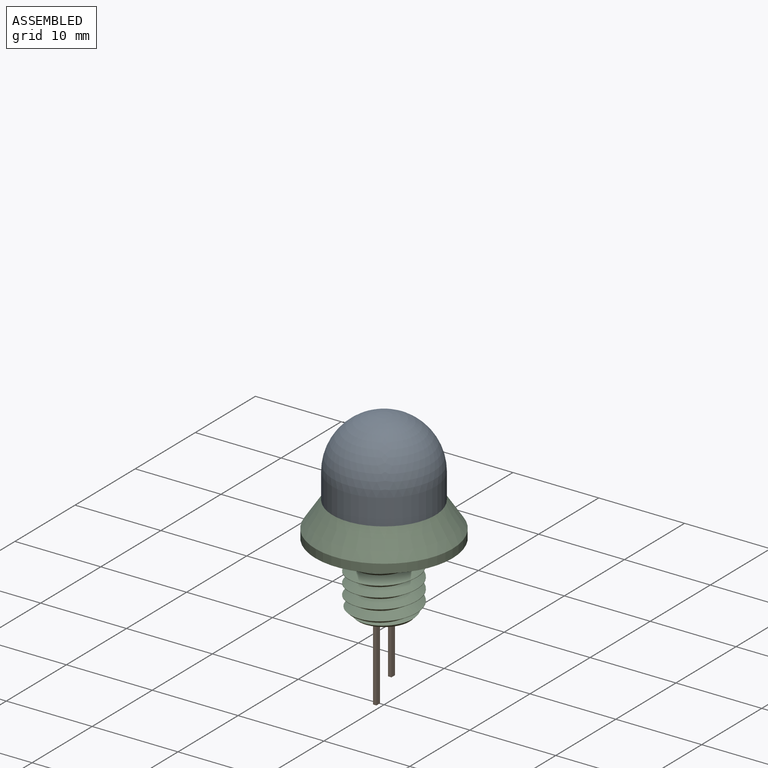
[diagram: assembled view]
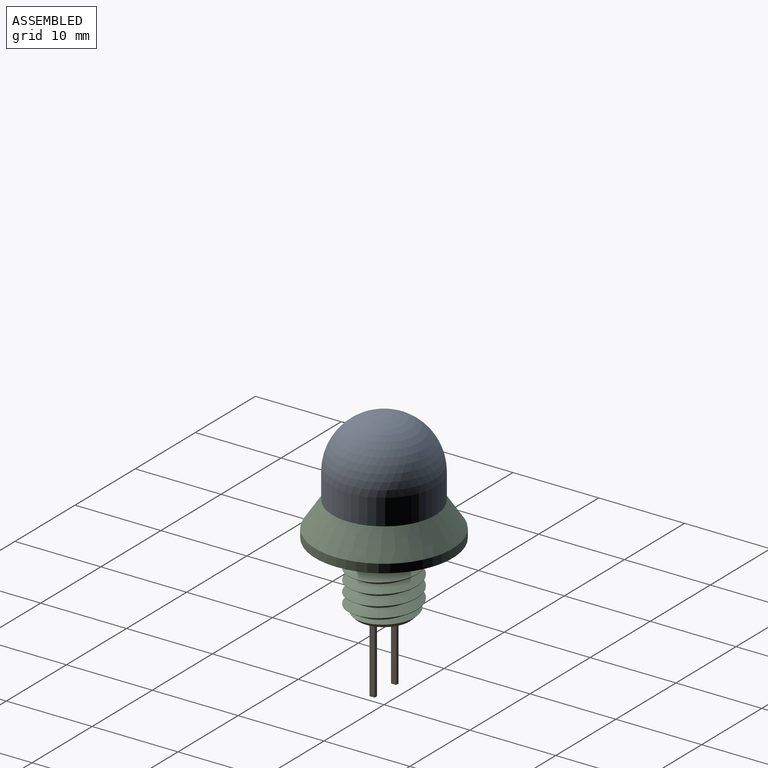
[diagram: assembled view, second angle]
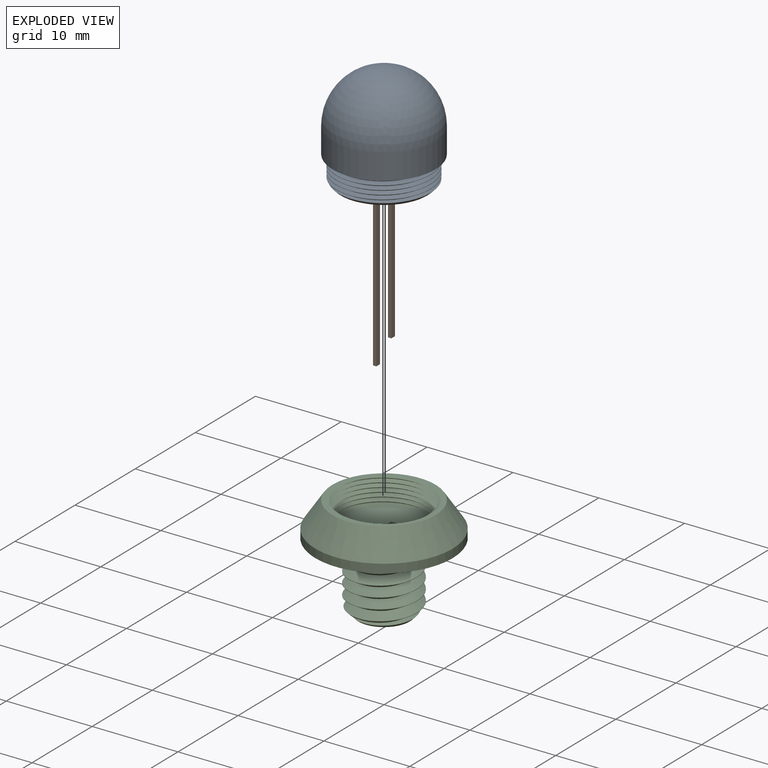
[diagram: exploded view]
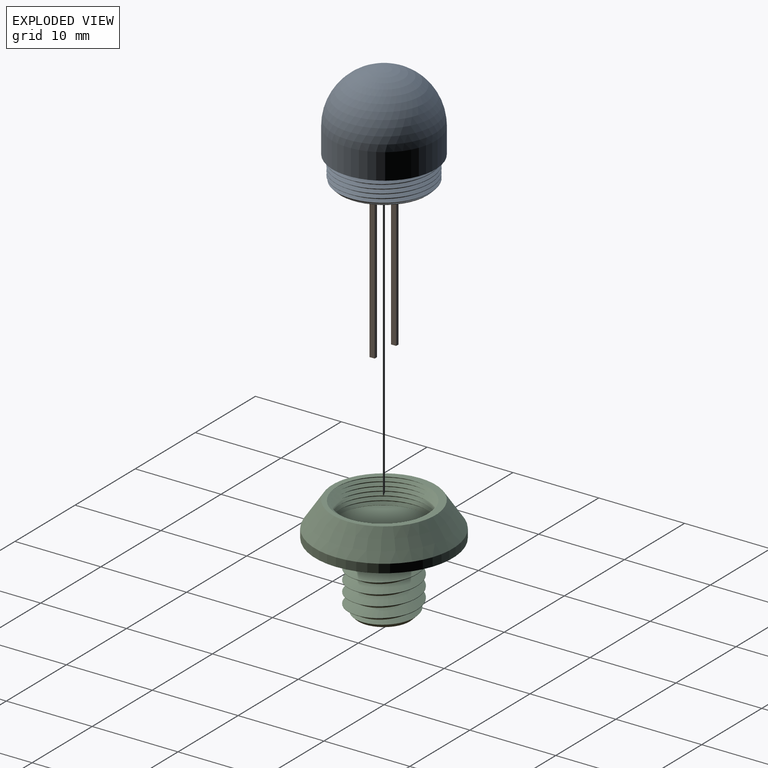
[diagram: exploded view, second angle]
ASSEMBLY  parts=3 mates=2
PART A: 14 faces, bbox 12.3x13x12.5 mm
  f0: cylinder r=5.5mm len=11mm, axis (0,0,1), area 8.1mm2, adj f7,f8,f9,f11
  f1: plane 10.1x10.1mm, normal (0,0,-1), area 51.8mm2, adj f2,f7
  f2: cylinder r=3mm len=6mm, axis (0,0,1), area 20.7mm2, adj f1,f3
  f3: plane 6x6mm, normal (0,0,-1), area 7mm2, adj f2,f4
  f4: cylinder r=2.6mm len=5.2mm, axis (0,0,1), area 14.7mm2, adj f3,f5
  f5: plane 9x9mm, normal (0,0,1), area 42.4mm2, adj f4,f6
  f6: cylinder r=4.5mm len=9mm, axis (0,0,1), area 113.1mm2, adj f5,f10
  f7: cone r=5.5mm half-angle=45deg, axis (0,0,1), area 12.7mm2, adj f0,f1,f8,f9
  f8: bspline ~12.7x11mm, area 82.3mm2, adj f0,f7,f9,f11
  f9: bspline ~12.7x11mm, area 82.3mm2, adj f0,f7,f8,f11
  f10: sphere r=4.5mm, area 127.2mm2, adj f6
  f11: plane 12.34x12.34mm, normal (0,0,-1), area 24mm2, adj f0,f8,f9,f13
  f12: sphere r=6mm, area 226.2mm2, adj f13
  f13: cylinder r=6mm len=12mm, axis (0,0,-1), area 113.1mm2, adj f11,f12
PART B: 16 faces, bbox 5.8x5.4x26.7 mm
  f0: plane 5.8x5.4mm, normal (0,0,-1), area 25.1mm2, adj f2,f5,f6,f7,f8,f9,f11,f12
  f1: plane 5.8x5.4mm, normal (0,0,1), area 6mm2, adj f2,f4,f5
  f2: cylinder r=2.9mm len=5.8mm, axis (0,0,-1), area 15.1mm2, adj f0,f1,f5
  f3: sphere r=2.5mm, area 39.3mm2, adj f4
  f4: cylinder r=2.5mm len=5.2mm, axis (0,0,-1), area 81.7mm2, adj f1,f3
  f5: plane 2.94x1mm, normal (0,1,0), area 2.9mm2, adj f0,f1,f2
  f6: plane 18x0.4mm, normal (0,1,0), area 7.2mm2, adj f0,f7,f9,f10
  f7: plane 18x0.6mm, normal (-1,0,0), area 10.8mm2, adj f0,f6,f8,f10
  f8: plane 18x0.4mm, normal (0,-1,0), area 7.2mm2, adj f0,f7,f9,f10
  f9: plane 18x0.6mm, normal (1,0,0), area 10.8mm2, adj f0,f6,f8,f10
  f10: plane 0.6x0.4mm, normal (0,0,-1), area 0.2mm2, adj f6,f7,f8,f9
  f11: plane 16x0.4mm, normal (0,-1,0), area 6.4mm2, adj f0,f12,f14,f15
  f12: plane 16x0.6mm, normal (1,0,0), area 9.6mm2, adj f0,f11,f13,f15
  f13: plane 16x0.4mm, normal (0,1,0), area 6.4mm2, adj f0,f12,f14,f15
  f14: plane 16x0.6mm, normal (-1,0,0), area 9.6mm2, adj f0,f11,f13,f15
  f15: plane 0.6x0.4mm, normal (0,0,-1), area 0.2mm2, adj f11,f12,f13,f14
PART C: 24 faces, bbox 16.3x16.3x13.4 mm
  f0: plane 16x16mm, normal (0,0,-1), area 162.2mm2, adj f2,f17,f22,f23
  f1: plane 4x4mm, normal (0,0,-1), area 11.6mm2, adj f9,f10,f11,f12,f13,f14,f15,f16
  f2: cylinder r=8mm len=16mm, axis (0,0,1), area 50.3mm2, adj f0,f5
  f3: bspline ~12.7x11mm, area 90mm2, adj f4,f6,f7,f8
  f4: bspline ~12.7x11mm, area 90mm2, adj f3,f6,f7,f8
  f5: cone r=6mm half-angle=33.7deg, axis (0,0,-1), area 158.6mm2, adj f2,f7
  f6: cylinder r=5.5mm len=11mm, axis (0,0,1), area 9.5mm2, adj f3,f4,f7,f8
  f7: plane 12.34x12.34mm, normal (0,0,1), area 24mm2, adj f3,f4,f5,f6
  f8: plane 10.99x10.98mm, normal (0,0,1), area 88.2mm2, adj f3,f4,f6,f9,f10,f11,f12,f13
  f9: plane 1x0.6mm, normal (0,-1,0), area 0.6mm2, adj f1,f8,f10,f12
  f10: plane 1x0.8mm, normal (1,0,0), area 0.8mm2, adj f1,f8,f9,f11
  f11: plane 1x0.6mm, normal (0,1,0), area 0.6mm2, adj f1,f8,f10,f12
  f12: plane 1x0.8mm, normal (-1,0,0), area 0.8mm2, adj f1,f8,f9,f11
  f13: plane 1x0.6mm, normal (0,1,0), area 0.6mm2, adj f1,f8,f14,f16
  f14: plane 1x0.8mm, normal (-1,0,0), area 0.8mm2, adj f1,f8,f13,f15
  f15: plane 1x0.6mm, normal (0,-1,0), area 0.6mm2, adj f1,f8,f14,f16
  f16: plane 1x0.8mm, normal (1,0,0), area 0.8mm2, adj f1,f8,f13,f15
  f17: cylinder r=4mm len=8mm, axis (0,0,1), area 7.3mm2, adj f0,f19,f22,f23
  f18: cylinder r=2mm len=7mm, axis (0,0,1), area 88mm2, adj f1,f20
  f19: cone r=4mm half-angle=45deg, axis (0,0,1), area 14.9mm2, adj f17,f20,f21,f22,f23
  f20: cone r=3mm half-angle=45deg, axis (0,0,-1), area 22.2mm2, adj f18,f19,f21,f22,f23
  f21: cone r=3mm half-angle=45deg, axis (0,0,-1), area 0mm2, adj f19,f20,f23
  f22: bspline ~9.24x8.93mm, area 157.5mm2, adj f0,f17,f19,f20,f23
  f23: bspline ~9.56x9.24mm, area 157.2mm2, adj f0,f17,f19,f20,f21,f22
PLACE A rot(axis=(0,0,1),126deg) t=(0,0,0)mm
PLACE B at identity fixed
PLACE C at identity
MATE fastened C.f2 <-> B.f2  axis (0,0,1) through (0,0,0)mm
MATE cylindrical A.f0 <-> C.f2  axis (0,0,-1) through (0,0,0)mm
